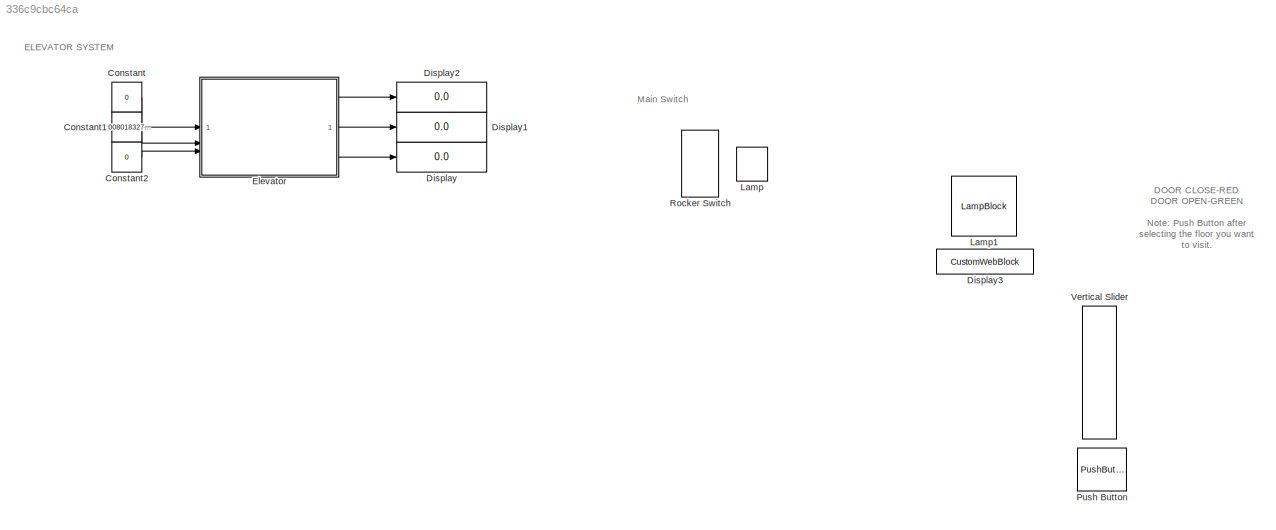
MODEL slx_336c9cbc64ca
KIND model
CONFIG AbsTol = auto
CONFIG EnableMultiTasking = off
CONFIG FixedStep = auto
CONFIG MaxStep = auto
CONFIG MinStep = auto
CONFIG RelTol = 1e-3
CONFIG SampleTimeConstraint = Unconstrained
CONFIG SolverName = VariableStepAuto
CONFIG StartTime = 0.0
CONFIG StopTime = inf
BLOCK [Constant] Constant
  Value = 0
BLOCK [Constant] Constant1
  Value = 1.008018327605956
BLOCK [Constant] Constant2
  Value = 0
BLOCK [Display] Display
  Decimation = 1
BLOCK [Display] Display1
  Decimation = 1
BLOCK [Display] Display2
  Decimation = 1
BLOCK [CustomWebBlock] Display3
  Configuration = {"components":[{"name":"DisplayComponent","settings":{"bold":false,"font":"DSEG7 Classic","fontColor":[255,255,200],"fontSize":"14","format":"short","formatString":"%d","italic":false,"position":[0,0,1,1],"underline":false}},{"name":"BackgroundImageComponent","settings":{"image":{"size":[300,80],"src":"data:image\/svg+xml;base64,PHN2ZyBpZD0iZnJhbWUiIHhtbG5zPSJodHRwOi8vd3d3LnczLm9yZy8yMDAwL3N2ZyIge...<+1637ch>
  LabelPosition = Hide
  ShowInitialText = on
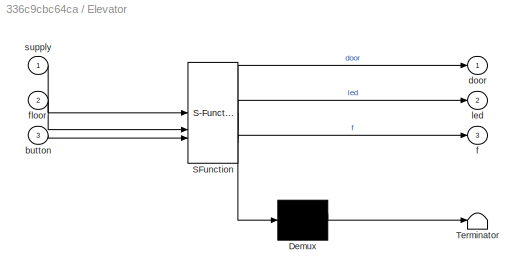
BLOCK [SubSystem] Elevator
  ErrorFcn = Stateflow.Translate.translate
  PermitHierarchicalResolution = ExplicitOnly
  SFBlockType = Chart
  TreatAsAtomicUnit = on
BLOCK [Demux] Elevator/ Demux 
  Outputs = 1
BLOCK [S-Function] Elevator/ SFunction 
  EnableBusSupport = on
  FunctionName = sf_sfun
  PortCounts = [3 4]
  SFcnIsStateOwnerBlock = off
  SFunctionDeploymentMode = off
  Tag = Stateflow S-Function 3
BLOCK [Terminator] Elevator/ Terminator 
BLOCK [Inport] Elevator/button
  Port = 3
BLOCK [Outport] Elevator/door
BLOCK [Outport] Elevator/f
  Port = 3
BLOCK [Inport] Elevator/floor
  Port = 2
BLOCK [Outport] Elevator/led
  Port = 2
BLOCK [Inport] Elevator/supply
BLOCK [LampBlock] Lamp
  LabelPosition = Hide
BLOCK [LampBlock] Lamp1
  LabelPosition = Hide
BLOCK [PushButtonBlock] Push Button
  OffValue = 0.000000
BLOCK [RockerSwitchBlock] Rocker Switch
  LabelPosition = Hide
BLOCK [CustomTuningWebBlock] Vertical Slider
  Configuration = {"components":[{"name":"LinearScaleComponent","settings":{"bounds":{"max":2,"min":0,"tickInterval":1},"internalTickHeightScaleFactor":0.5,"labelColor":[255,255,200],"labelFont":{"font":"Arial","fontSize":12},"labelOffset":0.05,"labelTransparency":1,"needleImage":{"size":[596,842],"src":"data:image\/svg+xml;base64,PD94bWwgdmVyc2lvbj0iMS4wIiBlbmNvZGluZz0idXRmLTgiPz4NCjwhLS0gR2VuZXJhdG9yOiBBZG9iZSBJb...<+5485ch>
  LabelPosition = Hide
  ShowInitialText = on
ANNOTATION (root): DOOR CLOSE-RED DOOR OPEN-GREEN Note: Push Button after selecting the floor you want to visit.
ANNOTATION (root): ELEVATOR SYSTEM
ANNOTATION (root): Main Switch
LINE Constant1:1 -> Elevator:2
LINE Constant2:1 -> Elevator:3
LINE Constant:1 -> Elevator:1
LINE Elevator:1 -> Display2:1
LINE Elevator:2 -> Display1:1
LINE Elevator:3 -> Display:1
CHART Elevator states=19 transitions=36
  STATE_LABEL '?'
  STATE_LABEL 'OPTIMISED DESIGN WITH FLOOR_SELECTOR'
  STATE_LABEL 'steady\ndoor==0\n'
  STATE_LABEL 'Power_supply1\nled=0\ndoor=5'
  STATE_LABEL 'floor_selector\nentry:\nled=1\ndoor=3\n'
  STATE_LABEL 'Door_open1\ndoor=1\n'
  STATE_LABEL 'Door_close1\ndoor=0\n'
  STATE_LABEL 'lvl_0\nf=0'
  STATE_LABEL 'lvl_1\nf=1'
  STATE_LABEL 'lvl_2\nf=2'
  STATE_LABEL 'after(2,sec)'
  STATE_LABEL '[button==1]'
  STATE_LABEL '[supply==1]'
  STATE_LABEL '[supply==0]'
  STATE_LABEL '[round(floor)==2&&...\nsupply==1]'
  STATE_LABEL 'after(8,sec)'
  STATE_LABEL '[round(floor)==1 ...\n&&supply==1]'
  STATE_LABEL '[round(floor)==0 && ...\nsupply==1]'
  STATE_LABEL 'after(3,sec)'
  STATE_LABEL 'after(3,sec)'
  STATE_LABEL 'after(3,sec)'
  STATE_LABEL 'OPTIMISED DESIGN WITH FLOOR_SELECTOR'
  STATE_LABEL 'steady\ndoor==0\n'
  STATE_LABEL 'Power_supply1\nled=0\ndoor=5'
  STATE_LABEL 'floor_selector\nentry:\nled=1\ndoor=3\n'
  STATE_LABEL 'Door_open1\ndoor=1\n'
  STATE_LABEL 'Door_close1\ndoor=0\n'
  STATE_LABEL 'lvl_0\nf=0'
  STATE_LABEL 'lvl_1\nf=1'
  STATE_LABEL 'lvl_2\nf=2'
  STATE_LABEL '?'
  STATE_LABEL 'FIRST DESIGN WITHOUT FLOOR SELECTOR'
  STATE_LABEL 'Power_supply\nled=0'
  STATE_LABEL 'Door_open\ndoor=1'
  STATE_LABEL 'Door_close\ndoor=0'
  STATE_LABEL 'Ground\nentry:\nled=1\ndoor=0'
  STATE_LABEL 'Floor1'
  STATE_LABEL 'Floor2'
  STATE_LABEL 'Floor3'
  STATE_LABEL '[supply==1]'
CHART  states=0 transitions=0
